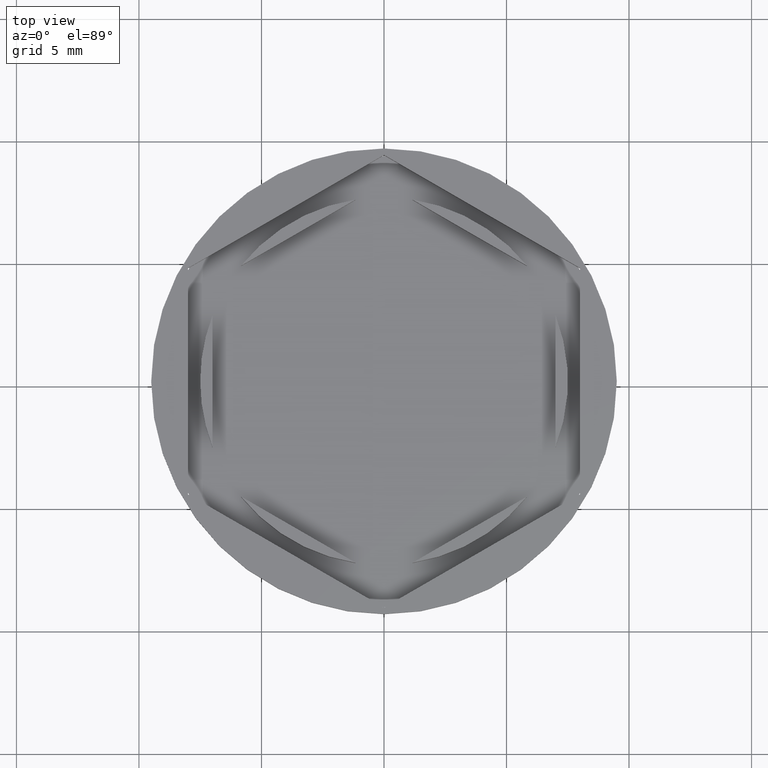
[diagram: clean part render]
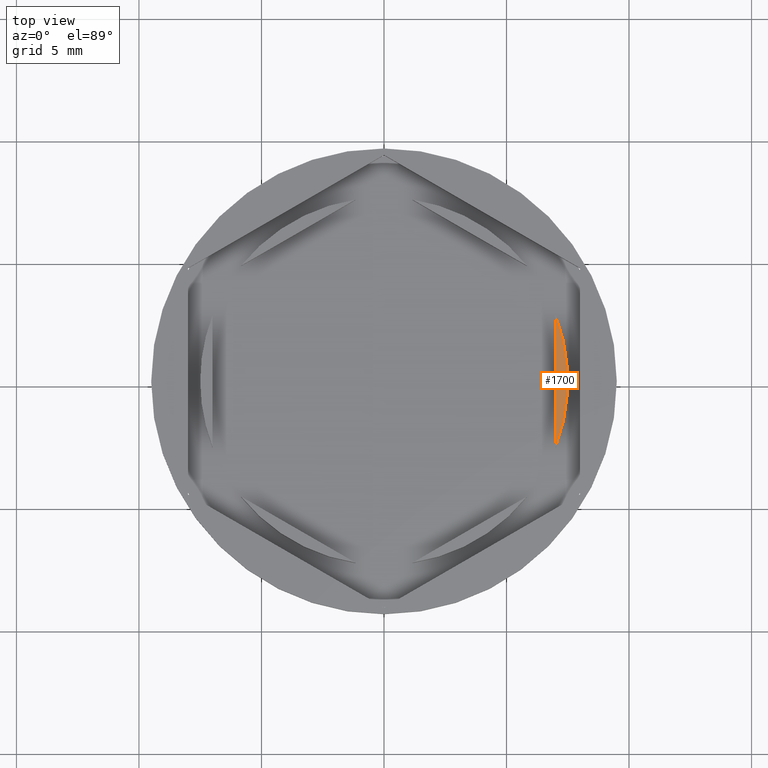
[diagram: same view with one face highlighted and labeled with its STEP entity id]
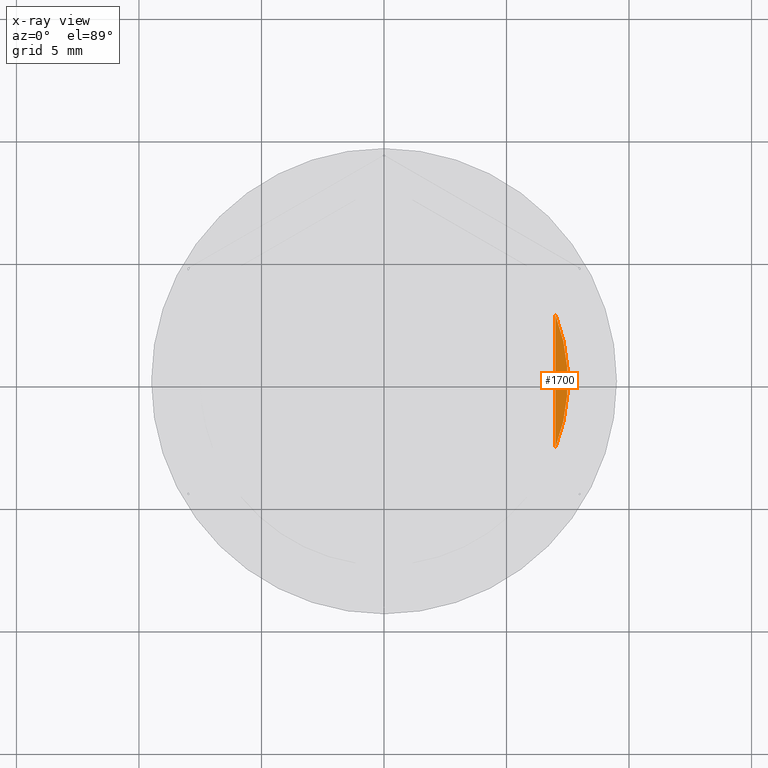
[diagram: x-ray of the same camera — body ghosted, the highlighted face saturated]
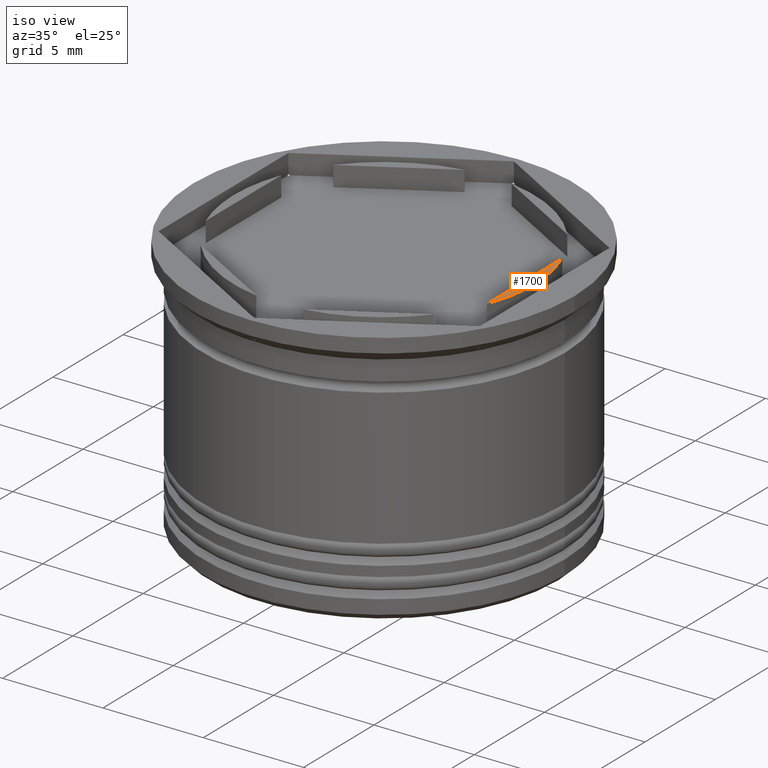
[diagram: same view with one face highlighted and labeled with its STEP entity id]
A machine part, top view. The second image highlights one B-rep face of the part: STEP entity #1700.
The next image is the same camera in x-ray: the body ghosted, the highlighted face saturated — about 0% of this face is hidden behind the body in this view.
A second angle (iso view) of the same face is appended — the face is thin or edge-on in the first view.
In plain terms, the highlighted planar face has unit normal (0, -0, 1).
Its self-contained STEP definition (entity closure, byte-faithful):
#5 = EDGE_CURVE ( 'NONE', #1273, #646, #1504, .T. ) ;
#120 = ORIENTED_EDGE ( 'NONE', *, *, #5, .F. ) ;
#232 = CARTESIAN_POINT ( 'NONE',  ( 0.000000000000000000, 0.000000000000000000, 0.000000000000000000 ) ) ;
#326 = CARTESIAN_POINT ( 'NONE',  ( 7.000000000000000000, 2.692582403567252314, 0.000000000000000000 ) ) ;
#428 = CARTESIAN_POINT ( 'NONE',  ( 0.000000000000000000, 0.000000000000000000, 0.000000000000000000 ) ) ;
#585 = FACE_OUTER_BOUND ( 'NONE', #936, .T. ) ;
#646 = VERTEX_POINT ( 'NONE', #326 ) ;
#813 = EDGE_CURVE ( 'NONE', #1273, #646, #2092, .T. ) ;
#817 = CARTESIAN_POINT ( 'NONE',  ( 6.999999999999999112, -1.502314598737159031E-15, 0.000000000000000000 ) ) ;
#936 = EDGE_LOOP ( 'NONE', ( #120, #2076 ) ) ;
#1010 = VECTOR ( 'NONE', #1480, 1000.000000000000000 ) ;
#1093 = DIRECTION ( 'NONE',  ( 0.000000000000000000, -0.000000000000000000, 1.000000000000000000 ) ) ;
#1259 = CARTESIAN_POINT ( 'NONE',  ( 6.999999999999998224, -2.692582403567254534, 0.000000000000000000 ) ) ;
#1273 = VERTEX_POINT ( 'NONE', #1259 ) ;
#1405 = DIRECTION ( 'NONE',  ( -0.000000000000000000, -0.000000000000000000, 1.000000000000000000 ) ) ;
#1480 = DIRECTION ( 'NONE',  ( 2.146163712481655900E-16, 1.000000000000000000, 0.000000000000000000 ) ) ;
#1504 = LINE ( 'NONE', #817, #1010 ) ;
#1589 = PLANE ( 'NONE',  #2028 ) ;
#1700 = ADVANCED_FACE ( 'NONE', ( #585 ), #1589, .T. ) ;
#1758 = DIRECTION ( 'NONE',  ( 1.000000000000000000, 0.000000000000000000, 0.000000000000000000 ) ) ;
#2028 = AXIS2_PLACEMENT_3D ( 'NONE', #428, #1093, #1758 ) ;
#2076 = ORIENTED_EDGE ( 'NONE', *, *, #813, .T. ) ;
#2077 = DIRECTION ( 'NONE',  ( 1.000000000000000000, 0.000000000000000000, 0.000000000000000000 ) ) ;
#2092 = CIRCLE ( 'NONE', #2127, 7.500000000000000000 ) ;
#2127 = AXIS2_PLACEMENT_3D ( 'NONE', #232, #1405, #2077 ) ;